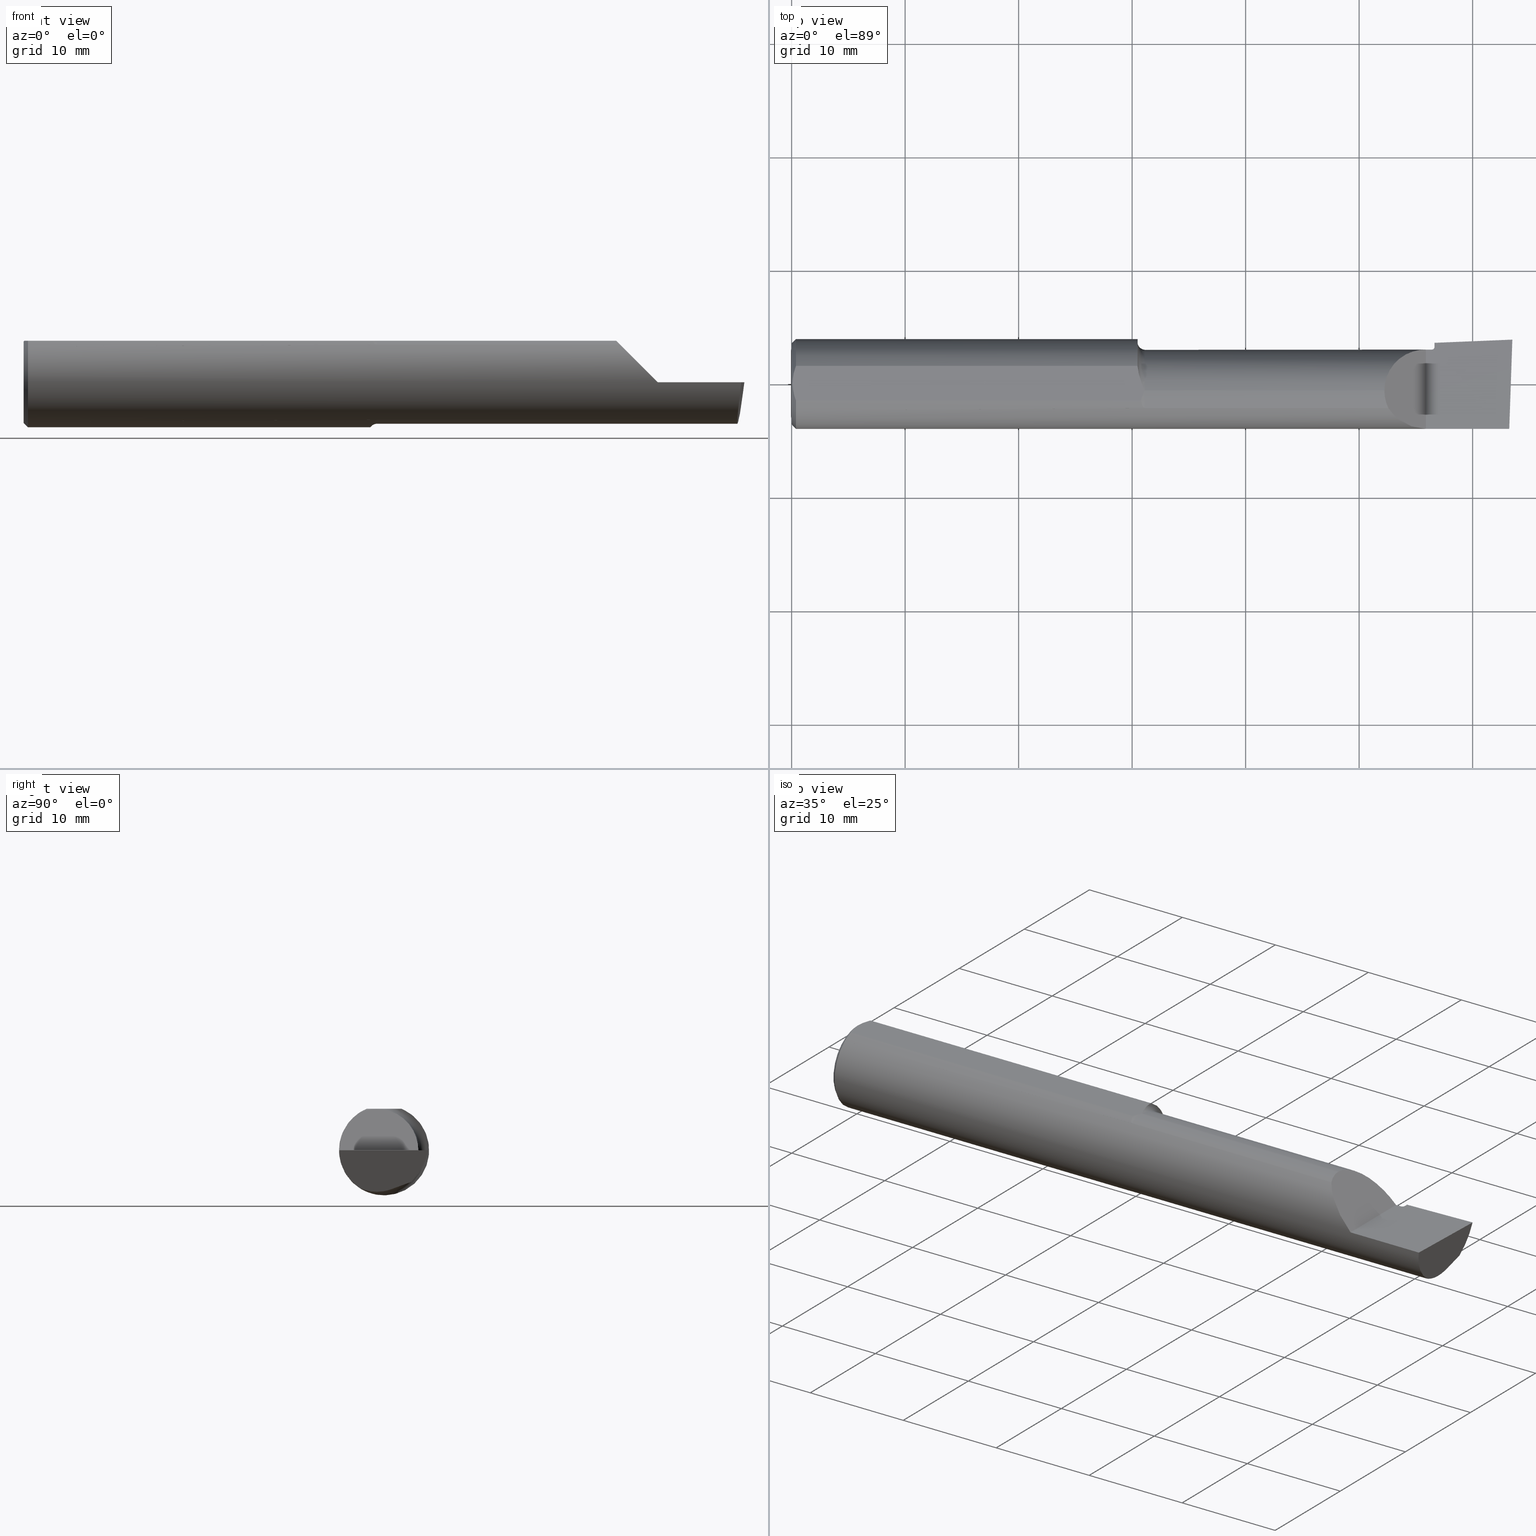
[diagram: canonical four-view strip — front | top / right | iso, engineering-drawing reading convention]
A machine part, canonical four-view strip (front | top / right | iso — engineering-drawing reading convention). The complete STEP part file that produces these views, byte-faithful:
ISO-10303-21;
HEADER;
FILE_DESCRIPTION (( 'STEP AP203' ),
    '1' );
FILE_NAME ('210294-BB3112.STEP',
    '2024-04-17T23:06:12',
    ( '' ),
    ( '' ),
    'SwSTEP 2.0',
    'SolidWorks 2022',
    '' );
FILE_SCHEMA (( 'CONFIG_CONTROL_DESIGN' ));
ENDSEC;

DATA;
#1 = CARTESIAN_POINT ( 'NONE',  ( 2.499553225608604823, 0.1407279727905360600, 3.826894855694925850E-18 ) ) ;
#2 = PERSON_AND_ORGANIZATION ( #692, #396 ) ;
#3 = VERTEX_POINT ( 'NONE', #421 ) ;
#4 = CARTESIAN_POINT ( 'NONE',  ( 2.146287522244402446, -0.1560999999999999888, 0.05371247775559774562 ) ) ;
#5 = CARTESIAN_POINT ( 'NONE',  ( 1.225000000000000089, -0.08569999999999958207, 0.1304711462354801732 ) ) ;
#6 = APPLICATION_PROTOCOL_DEFINITION ( 'international standard', 'config_control_design', 1994, #377 ) ;
#7 = ORIENTED_EDGE ( 'NONE', *, *, #406, .T. ) ;
#8 = AXIS2_PLACEMENT_3D ( 'NONE', #590, #434, #702 ) ;
#9 = CIRCLE ( 'NONE', #172, 0.1439000000000000001 ) ;
#10 = PLANE ( 'NONE',  #47 ) ;
#11 = DIRECTION ( 'NONE',  ( -1.000000000000000000, -0.000000000000000000, -0.000000000000000000 ) ) ;
#12 = ORIENTED_EDGE ( 'NONE', *, *, #254, .F. ) ;
#13 = EDGE_CURVE ( 'NONE', #58, #287, #629, .T. ) ;
#14 = CARTESIAN_POINT ( 'NONE',  ( 2.069528853764521781, -0.08570000000000160822, 0.1304711462354791740 ) ) ;
#15 = CARTESIAN_POINT ( 'NONE',  ( 2.232146125398431824, 0.1426568087456045186, 3.826894855694925850E-18 ) ) ;
#16 = ORIENTED_EDGE ( 'NONE', *, *, #193, .T. ) ;
#17 = DIRECTION ( 'NONE',  ( -1.000000000000000000, -0.000000000000000000, -0.000000000000000000 ) ) ;
#18 = CARTESIAN_POINT ( 'NONE',  ( 0.01499999999999972536, -0.06001999666777736026, 0.1440999999999999504 ) ) ;
#19 = VERTEX_POINT ( 'NONE', #198 ) ;
#20 = AXIS2_PLACEMENT_3D ( 'NONE', #491, #709, #214 ) ;
#21 = LINE ( 'NONE', #418, #461 ) ;
#22 = AXIS2_PLACEMENT_3D ( 'NONE', #25, #34, #599 ) ;
#23 = CARTESIAN_POINT ( 'NONE',  ( 1.221036826405246689, -0.03107590170041915276, 0.1441000000000000059 ) ) ;
#24 = CARTESIAN_POINT ( 'NONE',  ( 1.200071990262526755, 0.05564801034740574776, -0.1460745134073546669 ) ) ;
#25 = CARTESIAN_POINT ( 'NONE',  ( 0.000000000000000000, -0.02500000000000000486, 0.000000000000000000 ) ) ;
#26 = CARTESIAN_POINT ( 'NONE',  ( 1.212837095251398045, -0.05422015848554267992, 0.1440999999999999781 ) ) ;
#27 = CARTESIAN_POINT ( 'NONE',  ( 0.002999999999999654852, 1.764715027525136477E-17, 0.1440999999999999504 ) ) ;
#28 = EDGE_CURVE ( 'NONE', #38, #49, #503, .T. ) ;
#29 = PRODUCT_RELATED_PRODUCT_CATEGORY ( 'detail', '', ( #354 ) ) ;
#30 = CARTESIAN_POINT ( 'NONE',  ( 1.207963511987595773, -0.04781653154421319080, -0.1490354188631307919 ) ) ;
#31 = DIRECTION ( 'NONE',  ( 1.000000000000000000, -0.000000000000000000, -0.000000000000000000 ) ) ;
#32 = ORIENTED_EDGE ( 'NONE', *, *, #346, .T. ) ;
#33 = ADVANCED_FACE ( 'NONE', ( #648 ), #124, .T. ) ;
#34 = DIRECTION ( 'NONE',  ( -1.000000000000000000, -0.000000000000000000, -0.000000000000000000 ) ) ;
#35 = AXIS2_PLACEMENT_3D ( 'NONE', #279, #392, #667 ) ;
#36 = LOCAL_TIME ( 16, 6, 12.00000000000000000, #509 ) ;
#37 = PLANE ( 'NONE',  #321 ) ;
#38 = VERTEX_POINT ( 'NONE', #593 ) ;
#39 = CARTESIAN_POINT ( 'NONE',  ( 2.229821002046091571, 0.07620616581628353314, -0.1136908642440134232 ) ) ;
#40 = ADVANCED_FACE ( 'NONE', ( #91 ), #202, .T. ) ;
#41 = DIRECTION ( 'NONE',  ( 0.000000000000000000, 0.3420201433256629397, -0.9396926207859105373 ) ) ;
#42 = ORIENTED_EDGE ( 'NONE', *, *, #199, .F. ) ;
#43 = ORIENTED_EDGE ( 'NONE', *, *, #627, .F. ) ;
#44 = MECHANICAL_CONTEXT ( 'NONE', #377, 'mechanical' ) ;
#45 = CIRCLE ( 'NONE', #20, 0.1560999999999999888 ) ;
#46 = B_SPLINE_CURVE_WITH_KNOTS ( 'NONE', 3,
 ( #140, #236, #292, #671, #361, #132, #180, #409, #128, #5 ),
 .UNSPECIFIED., .F., .F.,
 ( 4, 2, 2, 2, 4 ),
 ( 5.292347910093785045E-07, 0.0004247077115782297413, 0.0006367969499718419872, 0.0007428415691686514983, 0.0008488861883654609010 ),
 .UNSPECIFIED. ) ;
#47 = AXIS2_PLACEMENT_3D ( 'NONE', #306, #581, #511 ) ;
#48 = CARTESIAN_POINT ( 'NONE',  ( 1.221844053232376215, -0.02500000000003146580, 0.1440999999999999504 ) ) ;
#49 = VERTEX_POINT ( 'NONE', #312 ) ;
#50 = PERSON_AND_ORGANIZATION ( #692, #396 ) ;
#51 = CARTESIAN_POINT ( 'NONE',  ( 2.229814999632693251, 0.07017856946061198919, -0.1184930152355831018 ) ) ;
#52 = EDGE_LOOP ( 'NONE', ( #42, #118, #553, #194 ) ) ;
#53 = CARTESIAN_POINT ( 'NONE',  ( 2.229999999999999538, 0.1560999999999999888, 3.826894855694925850E-18 ) ) ;
#54 = ORIENTED_EDGE ( 'NONE', *, *, #28, .F. ) ;
#55 = CARTESIAN_POINT ( 'NONE',  ( 2.219999999999999751, 0.02421669862456293787, -0.1352217681310926567 ) ) ;
#56 = AXIS2_PLACEMENT_3D ( 'NONE', #427, #31, #540 ) ;
#57 = CIRCLE ( 'NONE', #256, 0.1560999999999999888 ) ;
#58 = VERTEX_POINT ( 'NONE', #153 ) ;
#59 = CC_DESIGN_SECURITY_CLASSIFICATION ( #726, ( #231 ) ) ;
#60 = ADVANCED_FACE ( 'NONE', ( #207 ), #37, .T. ) ;
#61 = CYLINDRICAL_SURFACE ( 'NONE', #528, 0.1439000000000000556 ) ;
#62 = APPROVAL_DATE_TIME ( #171, #221 ) ;
#63 = ORIENTED_EDGE ( 'NONE', *, *, #346, .F. ) ;
#64 = CARTESIAN_POINT ( 'NONE',  ( 2.484581445595339666, 0.09576735185317598875, -0.1091794601135748777 ) ) ;
#65 = CARTESIAN_POINT ( 'NONE',  ( 2.236438376473965040, 0.1428326560817834989, 3.826894855694925850E-18 ) ) ;
#66 = EDGE_CURVE ( 'NONE', #282, #284, #473, .T. ) ;
#67 = VERTEX_POINT ( 'NONE', #696 ) ;
#68 = CARTESIAN_POINT ( 'NONE',  ( 2.476130359589496788, -0.02499999999999999098, -0.1439000000000000556 ) ) ;
#69 = DIRECTION ( 'NONE',  ( 0.000000000000000000, 0.000000000000000000, 1.000000000000000000 ) ) ;
#70 = APPROVAL_DATE_TIME ( #111, #646 ) ;
#71 = ORIENTED_EDGE ( 'NONE', *, *, #560, .F. ) ;
#72 = APPROVAL_PERSON_ORGANIZATION ( #107, #646, #294 ) ;
#73 = CARTESIAN_POINT ( 'NONE',  ( 2.475676552398977215, -0.08569999999999944329, -0.1304711462354803120 ) ) ;
#74 = DIRECTION ( 'NONE',  ( 0.7071067811865483499, 8.659560562354922997E-17, 0.7071067811865466846 ) ) ;
#75 = EDGE_LOOP ( 'NONE', ( #136, #353, #120, #179, #598, #471, #359 ) ) ;
#76 = CARTESIAN_POINT ( 'NONE',  ( 2.229999999999999538, 0.1026580227690544328, -0.08595719412995697639 ) ) ;
#77 = DIRECTION ( 'NONE',  ( 1.000000000000000000, 6.829619984160658046E-18, 0.000000000000000000 ) ) ;
#78 = ORIENTED_EDGE ( 'NONE', *, *, #342, .T. ) ;
#79 = CARTESIAN_POINT ( 'NONE',  ( 2.500000000000000000, 0.1536194554637218546, 2.048885995248197414E-16 ) ) ;
#80 = DIRECTION ( 'NONE',  ( -1.000000000000000000, 0.000000000000000000, 0.000000000000000000 ) ) ;
#81 = CARTESIAN_POINT ( 'NONE',  ( 0.01133677082750125277, -0.05049267068356103755, 0.1440999999999999781 ) ) ;
#82 = AXIS2_PLACEMENT_3D ( 'NONE', #272, #380, #263 ) ;
#83 = B_SPLINE_CURVE_WITH_KNOTS ( 'NONE', 3,
 ( #456, #623, #404, #135 ),
 .UNSPECIFIED., .F., .F.,
 ( 4, 4 ),
 ( 0.002773882331925834992, 0.003069179409190571188 ),
 .UNSPECIFIED. ) ;
#84 = CARTESIAN_POINT ( 'NONE',  ( 1.211707069840786355, -0.06372296352516945706, -0.1426158673175147718 ) ) ;
#85 = AXIS2_PLACEMENT_3D ( 'NONE', #578, #77, #308 ) ;
#86 = CARTESIAN_POINT ( 'NONE',  ( 1.210843495424060334, -0.06001999666777306508, 0.1440999999999999504 ) ) ;
#87 = CC_DESIGN_DATE_AND_TIME_ASSIGNMENT ( #395, #607, ( #726 ) ) ;
#88 = CARTESIAN_POINT ( 'NONE',  ( 0.002999999999999648781, 0.01034624861404697359, 0.1440999999999999781 ) ) ;
#89 =( BOUNDED_CURVE ( )  B_SPLINE_CURVE ( 3, ( #663, #401, #234, #713 ),
 .UNSPECIFIED., .F., .F. ) 
 B_SPLINE_CURVE_WITH_KNOTS ( ( 4, 4 ),
 ( 5.847732816089013852, 6.283185307179586232 ),
 .UNSPECIFIED. ) 
 CURVE ( )  GEOMETRIC_REPRESENTATION_ITEM ( )  RATIONAL_B_SPLINE_CURVE ( ( 1.000000000000000000, 0.9842607512044733165, 0.9842607512044733165, 1.000000000000000000 ) ) 
 REPRESENTATION_ITEM ( '' )  );
#90 = CARTESIAN_POINT ( 'NONE',  ( 1.223482932671287493, -0.08569999999999979023, -0.1304711462354801177 ) ) ;
#91 = FACE_OUTER_BOUND ( 'NONE', #588, .T. ) ;
#92 = EDGE_CURVE ( 'NONE', #220, #633, #565, .T. ) ;
#93 =( NAMED_UNIT ( * ) SI_UNIT ( $, .STERADIAN. ) SOLID_ANGLE_UNIT ( ) );
#94 = B_SPLINE_CURVE_WITH_KNOTS ( 'NONE', 3,
 ( #413, #15, #288, #65, #462, #626, #564 ),
 .UNSPECIFIED., .F., .F.,
 ( 4, 3, 4 ),
 ( 0.009746653936076972100, 0.009910325884368138827, 0.01661039546317633411 ),
 .UNSPECIFIED. ) ;
#95 = CARTESIAN_POINT ( 'NONE',  ( 1.201388441185261557, 0.01585133794323622530, -0.1555099485709025842 ) ) ;
#96 = EDGE_CURVE ( 'NONE', #106, #661, #108, .T. ) ;
#97 = DIRECTION ( 'NONE',  ( 0.000000000000000000, 0.000000000000000000, 1.000000000000000000 ) ) ;
#98 = ADVANCED_FACE ( 'NONE', ( #489 ), #436, .F. ) ;
#99 =( BOUNDED_CURVE ( )  B_SPLINE_CURVE ( 3, ( #621, #131, #139, #350 ),
 .UNSPECIFIED., .F., .F. ) 
 B_SPLINE_CURVE_WITH_KNOTS ( ( 4, 4 ),
 ( 6.122674497807367722, 6.558126988897922338 ),
 .UNSPECIFIED. ) 
 CURVE ( )  GEOMETRIC_REPRESENTATION_ITEM ( )  RATIONAL_B_SPLINE_CURVE ( ( 1.000000000000000000, 0.9842607512044745377, 0.9842607512044745377, 1.000000000000000000 ) ) 
 REPRESENTATION_ITEM ( '' )  );
#100 = AXIS2_PLACEMENT_3D ( 'NONE', #684, #360, #407 ) ;
#101 = APPROVAL_PERSON_ORGANIZATION ( #2, #295, #216 ) ;
#102 = PLANE ( 'NONE',  #369 ) ;
#103 = ORIENTED_EDGE ( 'NONE', *, *, #219, .F. ) ;
#104 = FACE_OUTER_BOUND ( 'NONE', #177, .T. ) ;
#105 = CARTESIAN_POINT ( 'NONE',  ( 2.500000000000000000, 0.1536194554637218546, 2.048885995248197414E-16 ) ) ;
#106 = VERTEX_POINT ( 'NONE', #439 ) ;
#107 = PERSON_AND_ORGANIZATION ( #692, #396 ) ;
#108 = B_SPLINE_CURVE_WITH_KNOTS ( 'NONE', 3,
 ( #432, #212, #587, #596 ),
 .UNSPECIFIED., .F., .F.,
 ( 4, 4 ),
 ( 0.0005609392357388779532, 0.007068866004999270133 ),
 .UNSPECIFIED. ) ;
#109 = CARTESIAN_POINT ( 'NONE',  ( 1.220724021719191255, -0.01776615298046146582, 0.1440999999999999781 ) ) ;
#110 = ORIENTED_EDGE ( 'NONE', *, *, #352, .F. ) ;
#111 = DATE_AND_TIME ( #242, #36 ) ;
#112 = EDGE_CURVE ( 'NONE', #188, #493, #699, .T. ) ;
#113 = CIRCLE ( 'NONE', #209, 0.1411000000000003085 ) ;
#114 = DIRECTION ( 'NONE',  ( 0.000000000000000000, 0.000000000000000000, 1.000000000000000000 ) ) ;
#115 = ORIENTED_EDGE ( 'NONE', *, *, #166, .T. ) ;
#116 = PERSON_AND_ORGANIZATION ( #692, #396 ) ;
#117 = LINE ( 'NONE', #286, #460 ) ;
#118 = ORIENTED_EDGE ( 'NONE', *, *, #488, .F. ) ;
#119 = FACE_OUTER_BOUND ( 'NONE', #679, .T. ) ;
#120 = ORIENTED_EDGE ( 'NONE', *, *, #382, .F. ) ;
#121 = ADVANCED_FACE ( 'NONE', ( #485 ), #102, .T. ) ;
#122 = EDGE_CURVE ( 'NONE', #633, #67, #45, .T. ) ;
#123 = DIRECTION ( 'NONE',  ( 0.000000000000000000, 0.000000000000000000, 1.000000000000000000 ) ) ;
#124 = CONICAL_SURFACE ( 'NONE', #56, 0.1560999999999999888, 0.7853981633974471688 ) ;
#125 = EDGE_LOOP ( 'NONE', ( #16, #270, #244 ) ) ;
#126 = CARTESIAN_POINT ( 'NONE',  ( 2.489315288308734608, 0.1256128547571744025, -0.07906752438118797022 ) ) ;
#127 = EDGE_CURVE ( 'NONE', #49, #403, #339, .T. ) ;
#128 = CARTESIAN_POINT ( 'NONE',  ( 1.223558490372086860, -0.08570000000287507358, 0.1304711462335917393 ) ) ;
#129 = DIRECTION ( 'NONE',  ( 1.000000000000000000, 0.000000000000000000, 0.000000000000000000 ) ) ;
#130 = ORIENTED_EDGE ( 'NONE', *, *, #627, .T. ) ;
#131 = CARTESIAN_POINT ( 'NONE',  ( 2.475247014433751946, -0.06661082633900415606, -0.1393521354400290846 ) ) ;
#132 = CARTESIAN_POINT ( 'NONE',  ( 1.219508261956889550, -0.08224208440130496844, 0.1326837206089795385 ) ) ;
#133 = ORIENTED_EDGE ( 'NONE', *, *, #435, .F. ) ;
#134 = DIRECTION ( 'NONE',  ( 0.000000000000000000, 0.000000000000000000, 1.000000000000000000 ) ) ;
#135 = CARTESIAN_POINT ( 'NONE',  ( 1.200050504025077514, 0.06001999666777729781, 0.1440999999999999504 ) ) ;
#136 = ORIENTED_EDGE ( 'NONE', *, *, #505, .F. ) ;
#137 = CIRCLE ( 'NONE', #552, 0.1560999999999999888 ) ;
#138 = LOCAL_TIME ( 16, 6, 12.00000000000000000, #330 ) ;
#139 = CARTESIAN_POINT ( 'NONE',  ( 2.475400702430881950, -0.04605394310600625929, -0.1439000000000000834 ) ) ;
#140 = CARTESIAN_POINT ( 'NONE',  ( 1.210843495424060334, -0.06001999666777306508, 0.1440999999999999504 ) ) ;
#141 = CARTESIAN_POINT ( 'NONE',  ( 0.000000000000000000, 0.000000000000000000, 0.000000000000000000 ) ) ;
#142 = EDGE_CURVE ( 'NONE', #388, #282, #258, .T. ) ;
#143 = CARTESIAN_POINT ( 'NONE',  ( 2.229999999999999538, -0.02500000000000000486, 0.000000000000000000 ) ) ;
#144 = CARTESIAN_POINT ( 'NONE',  ( 2.500000000000000000, 0.06001999666777736719, 0.1440999999999999504 ) ) ;
#145 = CARTESIAN_POINT ( 'NONE',  ( 0.01131807689752593361, 0.05044405151276061539, 0.1440999999999999781 ) ) ;
#146 = ADVANCED_FACE ( 'NONE', ( #325 ), #232, .F. ) ;
#147 = CARTESIAN_POINT ( 'NONE',  ( 1.225000000000000089, -0.08569999999999974860, -0.1304711462354800899 ) ) ;
#148 = CARTESIAN_POINT ( 'NONE',  ( 2.229999999999999538, 0.1425688816766004785, 0.000000000000000000 ) ) ;
#149 = CARTESIAN_POINT ( 'NONE',  ( 2.056000000000000050, 0.1560999999999999888, 0.1440000000000007108 ) ) ;
#150 = CONICAL_SURFACE ( 'NONE', #35, 0.1560999999999999888, 0.7853981633974471688 ) ;
#151 = CARTESIAN_POINT ( 'NONE',  ( 2.056000000000000050, -0.1560999999999999888, 3.826894855694925850E-18 ) ) ;
#152 = CARTESIAN_POINT ( 'NONE',  ( 1.199999999999999956, 0.1439000000000000001, 0.000000000000000000 ) ) ;
#153 = CARTESIAN_POINT ( 'NONE',  ( 0.000000000000000000, 1.819825143532968629E-17, 0.1411000000000003085 ) ) ;
#154 = CARTESIAN_POINT ( 'NONE',  ( 1.200649978979528187, 0.03207608857981686379, -0.1529893249888212847 ) ) ;
#155 = ORIENTED_EDGE ( 'NONE', *, *, #475, .F. ) ;
#156 = LINE ( 'NONE', #151, #644 ) ;
#157 = VECTOR ( 'NONE', #479, 39.37007874015748143 ) ;
#158 = TOROIDAL_SURFACE ( 'NONE', #384, 0.1688999999999999946, 0.02500000000000000486 ) ;
#159 = CARTESIAN_POINT ( 'NONE',  ( 0.000000000000000000, 0.000000000000000000, 0.000000000000000000 ) ) ;
#160 = ORIENTED_EDGE ( 'NONE', *, *, #526, .F. ) ;
#161 = PERSON_AND_ORGANIZATION ( #692, #396 ) ;
#162 = CARTESIAN_POINT ( 'NONE',  ( 1.204082834115638212, 0.03088512097718107766, 0.1440999999999999504 ) ) ;
#163 = ORIENTED_EDGE ( 'NONE', *, *, #549, .T. ) ;
#164 = PERSON_AND_ORGANIZATION_ROLE ( 'creator' ) ;
#165 = B_SPLINE_CURVE_WITH_KNOTS ( 'NONE', 3,
 ( #147, #90, #642, #259, #430, #535, #543, #386, #84, #30, #589, #530 ),
 .UNSPECIFIED., .F., .F.,
 ( 4, 2, 2, 2, 2, 4 ),
 ( 1.966861314596262729E-07, 0.0001139043861859081211, 0.0002276120862403566006, 0.0004550274863492592518, 0.0009098582865670681863, 0.001819519887002688007 ),
 .UNSPECIFIED. ) ;
#166 = EDGE_CURVE ( 'NONE', #19, #446, #117, .T. ) ;
#167 = CC_DESIGN_PERSON_AND_ORGANIZATION_ASSIGNMENT ( #116, #566, ( #354 ) ) ;
#168 =( BOUNDED_CURVE ( )  B_SPLINE_CURVE ( 3, ( #555, #398, #175, #612 ),
 .UNSPECIFIED., .F., .T. ) 
 B_SPLINE_CURVE_WITH_KNOTS ( ( 4, 4 ),
 ( 0.2749416817183363282, 0.6240075321171965061 ),
 .UNSPECIFIED. ) 
 CURVE ( )  GEOMETRIC_REPRESENTATION_ITEM ( )  RATIONAL_B_SPLINE_CURVE ( ( 1.000000000000000000, 0.9898718353414723836, 0.9898718353414723836, 1.000000000000000000 ) ) 
 REPRESENTATION_ITEM ( '' )  );
#169 = CARTESIAN_POINT ( 'NONE',  ( 1.225000000000000089, -0.02500000000000000486, 0.000000000000000000 ) ) ;
#170 = VERTEX_POINT ( 'NONE', #442 ) ;
#171 = DATE_AND_TIME ( #187, #230 ) ;
#172 = AXIS2_PLACEMENT_3D ( 'NONE', #365, #466, #477 ) ;
#173 = LINE ( 'NONE', #451, #357 ) ;
#174 = VERTEX_POINT ( 'NONE', #500 ) ;
#175 = CARTESIAN_POINT ( 'NONE',  ( 2.477647009804057276, 0.008402520951239019972, -0.1409776580835795379 ) ) ;
#176 = EDGE_CURVE ( 'NONE', #388, #3, #328, .T. ) ;
#177 = EDGE_LOOP ( 'NONE', ( #455, #668, #12, #78 ) ) ;
#178 = CARTESIAN_POINT ( 'NONE',  ( 1.225000000000000089, -0.02500000000000000486, 0.1688999999999999946 ) ) ;
#179 = ORIENTED_EDGE ( 'NONE', *, *, #324, .T. ) ;
#180 = CARTESIAN_POINT ( 'NONE',  ( 1.220308733175471838, -0.08325729668116155224, 0.1320471792325035865 ) ) ;
#181 = AXIS2_PLACEMENT_3D ( 'NONE', #141, #362, #579 ) ;
#182 = COORDINATED_UNIVERSAL_TIME_OFFSET ( 8, 0, .BEHIND. ) ;
#183 = CIRCLE ( 'NONE', #554, 0.2026556797788580666 ) ;
#184 = ORIENTED_EDGE ( 'NONE', *, *, #480, .F. ) ;
#185 = DIRECTION ( 'NONE',  ( -1.000000000000000000, -0.000000000000000000, -0.000000000000000000 ) ) ;
#186 = CARTESIAN_POINT ( 'NONE',  ( 2.229999999999999538, 0.1289000000000001256, 0.000000000000000000 ) ) ;
#187 = CALENDAR_DATE ( 2024, 17, 4 ) ;
#188 = VERTEX_POINT ( 'NONE', #283 ) ;
#189 = CARTESIAN_POINT ( 'NONE',  ( 2.069528853764521781, -0.08570000000000160822, 0.1304711462354791740 ) ) ;
#190 = ORIENTED_EDGE ( 'NONE', *, *, #28, .T. ) ;
#191 = CARTESIAN_POINT ( 'NONE',  ( 0.01499999999999970281, 0.000000000000000000, 0.000000000000000000 ) ) ;
#192 = DIRECTION ( 'NONE',  ( 0.000000000000000000, 0.000000000000000000, -1.000000000000000000 ) ) ;
#193 = EDGE_CURVE ( 'NONE', #284, #437, #602, .T. ) ;
#194 = ORIENTED_EDGE ( 'NONE', *, *, #653, .F. ) ;
#195 = CC_DESIGN_APPROVAL ( #295, ( #726 ) ) ;
#196 = CARTESIAN_POINT ( 'NONE',  ( 2.500000000000000000, -0.06001999666777736719, 0.1440999999999999504 ) ) ;
#197 = DIRECTION ( 'NONE',  ( -1.000000000000000000, 0.000000000000000000, -0.000000000000000000 ) ) ;
#198 = CARTESIAN_POINT ( 'NONE',  ( 2.475676552398977215, -0.08569999999999944329, -0.1304711462354803120 ) ) ;
#199 = EDGE_CURVE ( 'NONE', #620, #188, #89, .T. ) ;
#200 = DIRECTION ( 'NONE',  ( -1.000000000000000000, -0.000000000000000000, -0.000000000000000000 ) ) ;
#201 = FACE_OUTER_BOUND ( 'NONE', #125, .T. ) ;
#202 = PLANE ( 'NONE',  #688 ) ;
#203 = ORIENTED_EDGE ( 'NONE', *, *, #127, .T. ) ;
#204 = CYLINDRICAL_SURFACE ( 'NONE', #22, 0.1439000000000000556 ) ;
#205 = APPLICATION_CONTEXT ( 'configuration controlled 3d designs of mechanical parts and assemblies' ) ;
#206 = DIRECTION ( 'NONE',  ( -1.000000000000000000, -0.000000000000000000, -0.000000000000000000 ) ) ;
#207 = FACE_OUTER_BOUND ( 'NONE', #52, .T. ) ;
#208 = DIRECTION ( 'NONE',  ( 0.07437990725530781166, 0.9370896517296887218, 0.3410727400684822053 ) ) ;
#209 = AXIS2_PLACEMENT_3D ( 'NONE', #364, #568, #297 ) ;
#210 = CARTESIAN_POINT ( 'NONE',  ( 2.500000000000000000, 0.02421669862456291358, -0.1352217681310924902 ) ) ;
#211 = CARTESIAN_POINT ( 'NONE',  ( 2.229859268224278601, 0.08199278120420903926, -0.1085136927497340198 ) ) ;
#212 = CARTESIAN_POINT ( 'NONE',  ( 2.314562659517444221, 0.08023483548404049259, -0.1148328337351926520 ) ) ;
#213 = CARTESIAN_POINT ( 'NONE',  ( 2.229999999999999538, 0.1026580227690544328, -0.08595719412995697639 ) ) ;
#214 = DIRECTION ( 'NONE',  ( 0.000000000000000000, 0.000000000000000000, -1.000000000000000000 ) ) ;
#215 = ORIENTED_EDGE ( 'NONE', *, *, #704, .T. ) ;
#216 = APPROVAL_ROLE ( '' ) ;
#217 = CIRCLE ( 'NONE', #724, 0.1539000000000001200 ) ;
#218 = CARTESIAN_POINT ( 'NONE',  ( 2.224174734775642204, 0.03941084190547497479, -0.1296915522416648148 ) ) ;
#219 = EDGE_CURVE ( 'NONE', #106, #170, #683, .T. ) ;
#220 = VERTEX_POINT ( 'NONE', #447 ) ;
#221 = APPROVAL ( #327, 'UNSPECIFIED' ) ;
#222 = CALENDAR_DATE ( 2024, 17, 4 ) ;
#223 = DIRECTION ( 'NONE',  ( 0.000000000000000000, 0.000000000000000000, -1.000000000000000000 ) ) ;
#224 = VERTEX_POINT ( 'NONE', #105 ) ;
#225 = DIRECTION ( 'NONE',  ( 0.000000000000000000, 0.000000000000000000, 1.000000000000000000 ) ) ;
#226 = EDGE_CURVE ( 'NONE', #287, #441, #173, .T. ) ;
#227 = DIRECTION ( 'NONE',  ( 0.000000000000000000, 1.000000000000000000, 0.000000000000000000 ) ) ;
#228 = EDGE_LOOP ( 'NONE', ( #498, #559, #557 ) ) ;
#229 = EDGE_CURVE ( 'NONE', #628, #334, #399, .T. ) ;
#230 = LOCAL_TIME ( 16, 6, 12.00000000000000000, #299 ) ;
#231 = PRODUCT_DEFINITION_FORMATION_WITH_SPECIFIED_SOURCE ( 'ANY', '', #354, .NOT_KNOWN. ) ;
#232 = PLANE ( 'NONE',  #381 ) ;
#233 = ORIENTED_EDGE ( 'NONE', *, *, #122, .F. ) ;
#234 = CARTESIAN_POINT ( 'NONE',  ( 2.056100000000000705, -0.04605394310600714747, 0.1439000000000000834 ) ) ;
#235 = EDGE_LOOP ( 'NONE', ( #130, #615, #576, #654, #63, #160 ) ) ;
#236 = CARTESIAN_POINT ( 'NONE',  ( 1.212083001804619586, -0.06507129184707169389, 0.1419960532975073353 ) ) ;
#237 = APPROVAL_STATUS ( 'not_yet_approved' ) ;
#238 = EDGE_LOOP ( 'NONE', ( #591, #309, #184, #507, #340, #665, #372, #400 ) ) ;
#239 = DIRECTION ( 'NONE',  ( -1.000000000000000000, -0.000000000000000000, -0.000000000000000000 ) ) ;
#240 = CARTESIAN_POINT ( 'NONE',  ( 1.225000000000000089, -0.02500000000000000486, 0.000000000000000000 ) ) ;
#241 = AXIS2_PLACEMENT_3D ( 'NONE', #169, #561, #123 ) ;
#242 = CALENDAR_DATE ( 2024, 17, 4 ) ;
#243 = VECTOR ( 'NONE', #508, 39.37007874015748143 ) ;
#244 = ORIENTED_EDGE ( 'NONE', *, *, #497, .F. ) ;
#245 = ADVANCED_FACE ( 'NONE', ( #119 ), #150, .T. ) ;
#246 = DIRECTION ( 'NONE',  ( 1.000000000000000000, -0.000000000000000000, -0.000000000000000000 ) ) ;
#247 = DIRECTION ( 'NONE',  ( 0.000000000000000000, 0.000000000000000000, 1.000000000000000000 ) ) ;
#248 = ORIENTED_EDGE ( 'NONE', *, *, #342, .F. ) ;
#249 = CARTESIAN_POINT ( 'NONE',  ( 1.225000000000000089, -0.02500000000000000486, 0.000000000000000000 ) ) ;
#250 = ORIENTED_EDGE ( 'NONE', *, *, #649, .T. ) ;
#251 = CARTESIAN_POINT ( 'NONE',  ( 2.229999999999999094, 0.09791314462616589054, -0.09193769788322241066 ) ) ;
#252 = EDGE_CURVE ( 'NONE', #403, #441, #137, .T. ) ;
#253 = CARTESIAN_POINT ( 'NONE',  ( 1.210843495424060334, -0.06001999666777306508, 0.1440999999999999504 ) ) ;
#254 = EDGE_CURVE ( 'NONE', #174, #493, #449, .T. ) ;
#255 = ORIENTED_EDGE ( 'NONE', *, *, #66, .F. ) ;
#256 = AXIS2_PLACEMENT_3D ( 'NONE', #191, #246, #525 ) ;
#257 = CARTESIAN_POINT ( 'NONE',  ( 2.500000000000000000, 0.02421669862456291358, -0.1352217681310924902 ) ) ;
#258 = LINE ( 'NONE', #483, #157 ) ;
#259 = CARTESIAN_POINT ( 'NONE',  ( 1.220128093538963121, -0.08306175160949978709, -0.1321708551218363503 ) ) ;
#260 = LINE ( 'NONE', #144, #278 ) ;
#261 = CARTESIAN_POINT ( 'NONE',  ( 0.002999999999999647914, -0.01031315224690933403, 0.1440999999999999781 ) ) ;
#262 = CARTESIAN_POINT ( 'NONE',  ( 2.229999999999999538, -0.05609999999999996934, 0.04000000000000000083 ) ) ;
#263 = DIRECTION ( 'NONE',  ( -1.000000000000000000, 0.000000000000000000, 0.000000000000000000 ) ) ;
#264 = ORIENTED_EDGE ( 'NONE', *, *, #229, .F. ) ;
#265 = VECTOR ( 'NONE', #645, 39.37007874015748143 ) ;
#266 = DIRECTION ( 'NONE',  ( 0.000000000000000000, 0.000000000000000000, 1.000000000000000000 ) ) ;
#268 = VECTOR ( 'NONE', #630, 39.37007874015748143 ) ;
#267 = CC_DESIGN_PERSON_AND_ORGANIZATION_ASSIGNMENT ( #495, #619, ( #726 ) ) ;
#269 = CARTESIAN_POINT ( 'NONE',  ( 1.199999999999999956, 0.07070000000000016549, -0.1391715488165593539 ) ) ;
#270 = ORIENTED_EDGE ( 'NONE', *, *, #674, .T. ) ;
#271 = CARTESIAN_POINT ( 'NONE',  ( 2.199999999999999289, 0.1189000000000000612, 3.826894855694925850E-18 ) ) ;
#272 = CARTESIAN_POINT ( 'NONE',  ( 0.000000000000000000, 0.06250000000000000000, 0.1440999999999999504 ) ) ;
#273 = ADVANCED_BREP_SHAPE_REPRESENTATION ( '210294-BB3112', ( #341, #541 ), #300 ) ;
#274 = EDGE_CURVE ( 'NONE', #613, #517, #168, .T. ) ;
#275 = CARTESIAN_POINT ( 'NONE',  ( 2.225157097429442121, 0.04322541840385487472, -0.1283031599399231115 ) ) ;
#276 = ORIENTED_EDGE ( 'NONE', *, *, #302, .F. ) ;
#277 = PERSON_AND_ORGANIZATION ( #692, #396 ) ;
#278 = VECTOR ( 'NONE', #695, 39.37007874015748143 ) ;
#279 = CARTESIAN_POINT ( 'NONE',  ( 0.01499999999999970281, 0.000000000000000000, 0.000000000000000000 ) ) ;
#280 = EDGE_CURVE ( 'NONE', #603, #446, #711, .T. ) ;
#281 = ORIENTED_EDGE ( 'NONE', *, *, #382, .T. ) ;
#282 = VERTEX_POINT ( 'NONE', #344 ) ;
#283 = CARTESIAN_POINT ( 'NONE',  ( 2.056100000000000705, -0.02500000000000000486, 0.1439000000000000556 ) ) ;
#284 = VERTEX_POINT ( 'NONE', #186 ) ;
#285 = AXIS2_PLACEMENT_3D ( 'NONE', #240, #572, #69 ) ;
#286 = CARTESIAN_POINT ( 'NONE',  ( 1.722499999999999698, -0.08569999999999944329, -0.1304711462354803120 ) ) ;
#287 = VERTEX_POINT ( 'NONE', #617 ) ;
#288 = CARTESIAN_POINT ( 'NONE',  ( 2.234292250889879039, 0.1427447335443261800, 3.826894855694925850E-18 ) ) ;
#289 = PERSON_AND_ORGANIZATION_ROLE ( 'creator' ) ;
#290 = ORIENTED_EDGE ( 'NONE', *, *, #92, .F. ) ;
#291 = FACE_OUTER_BOUND ( 'NONE', #562, .T. ) ;
#292 = CARTESIAN_POINT ( 'NONE',  ( 1.213486186723762739, -0.06993940022577692373, 0.1396536156489261715 ) ) ;
#293 = ADVANCED_FACE ( 'NONE', ( #523 ), #61, .T. ) ;
#294 = APPROVAL_ROLE ( '' ) ;
#295 = APPROVAL ( #237, 'UNSPECIFIED' ) ;
#296 = EDGE_LOOP ( 'NONE', ( #264, #524, #190, #203, #673, #155 ) ) ;
#297 = DIRECTION ( 'NONE',  ( 0.000000000000000000, 0.000000000000000000, -1.000000000000000000 ) ) ;
#298 = DIRECTION ( 'NONE',  ( -1.000000000000000000, -0.000000000000000000, -0.000000000000000000 ) ) ;
#299 = COORDINATED_UNIVERSAL_TIME_OFFSET ( 8, 0, .BEHIND. ) ;
#300 =( GEOMETRIC_REPRESENTATION_CONTEXT ( 3 ) GLOBAL_UNCERTAINTY_ASSIGNED_CONTEXT ( ( #638 ) ) GLOBAL_UNIT_ASSIGNED_CONTEXT ( ( #700, #438, #93 ) ) REPRESENTATION_CONTEXT ( 'NONE', 'WORKASPACE' ) );
#301 = VERTEX_POINT ( 'NONE', #681 ) ;
#302 = EDGE_CURVE ( 'NONE', #334, #493, #420, .T. ) ;
#303 = CARTESIAN_POINT ( 'NONE',  ( 2.199999999999999289, 0.1189000000000000612, 3.826894855694925850E-18 ) ) ;
#304 = ORIENTED_EDGE ( 'NONE', *, *, #497, .T. ) ;
#305 = EDGE_CURVE ( 'NONE', #437, #224, #94, .T. ) ;
#306 = CARTESIAN_POINT ( 'NONE',  ( 2.056000000000000050, 0.1560999999999999888, 3.826894855694925850E-18 ) ) ;
#307 = EDGE_CURVE ( 'NONE', #58, #49, #351, .T. ) ;
#308 = DIRECTION ( 'NONE',  ( 0.000000000000000000, 1.000000000000000000, 0.000000000000000000 ) ) ;
#309 = ORIENTED_EDGE ( 'NONE', *, *, #610, .T. ) ;
#310 =( BOUNDED_CURVE ( )  B_SPLINE_CURVE ( 3, ( #319, #592, #433, #271 ),
 .UNSPECIFIED., .F., .F. ) 
 B_SPLINE_CURVE_WITH_KNOTS ( ( 4, 4 ),
 ( 0.000000000000000000, 1.570796326794898112 ),
 .UNSPECIFIED. ) 
 CURVE ( )  GEOMETRIC_REPRESENTATION_ITEM ( )  RATIONAL_B_SPLINE_CURVE ( ( 1.000000000000000000, 0.8047378541243646044, 0.8047378541243646044, 1.000000000000000000 ) ) 
 REPRESENTATION_ITEM ( '' )  );
#311 = CARTESIAN_POINT ( 'NONE',  ( 2.229999999999999538, 0.1891209999999999836, 0.000000000000000000 ) ) ;
#312 = CARTESIAN_POINT ( 'NONE',  ( 0.002999999999999654852, 1.764715027525136477E-17, 0.1440999999999999504 ) ) ;
#313 = VECTOR ( 'NONE', #74, 39.37007874015748143 ) ;
#314 = CYLINDRICAL_SURFACE ( 'NONE', #651, 0.1560999999999999888 ) ;
#315 = DIRECTION ( 'NONE',  ( 0.1219414168599299575, 0.000000000000000000, 0.9925372994775525370 ) ) ;
#316 = CARTESIAN_POINT ( 'NONE',  ( 1.203902027940762620, -0.01695323297373857799, -0.1553906460178914595 ) ) ;
#317 =( BOUNDED_CURVE ( )  B_SPLINE_CURVE ( 3, ( #634, #4, #411, #14 ),
 .UNSPECIFIED., .F., .T. ) 
 B_SPLINE_CURVE_WITH_KNOTS ( ( 4, 4 ),
 ( 4.712388980384689674, 5.702009535608121737 ),
 .UNSPECIFIED. ) 
 CURVE ( )  GEOMETRIC_REPRESENTATION_ITEM ( )  RATIONAL_B_SPLINE_CURVE ( ( 1.000000000000000000, 0.9200392120919993477, 0.9200392120919993477, 1.000000000000000000 ) ) 
 REPRESENTATION_ITEM ( '' )  );
#318 = CARTESIAN_POINT ( 'NONE',  ( 1.203136333117606815, -0.008834603825782230690, -0.1560646118524871839 ) ) ;
#319 = CARTESIAN_POINT ( 'NONE',  ( 2.056100000000000705, -0.02500000000000000486, 0.1439000000000000556 ) ) ;
#320 = DIRECTION ( 'NONE',  ( 0.7071067811865441310, 0.000000000000000000, -0.7071067811865507924 ) ) ;
#321 = AXIS2_PLACEMENT_3D ( 'NONE', #149, #705, #320 ) ;
#322 = DIRECTION ( 'NONE',  ( -1.000000000000000000, -0.000000000000000000, -0.000000000000000000 ) ) ;
#323 = CARTESIAN_POINT ( 'NONE',  ( 1.200397517577731721, 0.04003554869482266187, -0.1511013546051950540 ) ) ;
#324 = EDGE_CURVE ( 'NONE', #67, #628, #83, .T. ) ;
#325 = FACE_OUTER_BOUND ( 'NONE', #728, .T. ) ;
#326 = ORIENTED_EDGE ( 'NONE', *, *, #13, .F. ) ;
#327 = APPROVAL_STATUS ( 'not_yet_approved' ) ;
#328 = LINE ( 'NONE', #600, #440 ) ;
#329 = ORIENTED_EDGE ( 'NONE', *, *, #704, .F. ) ;
#330 = COORDINATED_UNIVERSAL_TIME_OFFSET ( 8, 0, .BEHIND. ) ;
#331 = CLOSED_SHELL ( 'NONE', ( #655, #708, #385, #622, #33, #429, #556, #580, #40, #660, #98, #60, #146, #245, #121, #374, #293, #402, #412 ) ) ;
#332 = AXIS2_PLACEMENT_3D ( 'NONE', #373, #322, #266 ) ;
#333 = DIRECTION ( 'NONE',  ( 0.000000000000000000, 0.000000000000000000, -1.000000000000000000 ) ) ;
#334 = VERTEX_POINT ( 'NONE', #512 ) ;
#335 = CARTESIAN_POINT ( 'NONE',  ( 0.000000000000000000, 0.000000000000000000, 0.000000000000000000 ) ) ;
#336 = DIRECTION ( 'NONE',  ( 0.7071067811865483499, 0.000000000000000000, -0.7071067811865466846 ) ) ;
#337 = ORIENTED_EDGE ( 'NONE', *, *, #534, .F. ) ;
#338 = DIRECTION ( 'NONE',  ( -1.000000000000000000, -0.000000000000000000, -0.000000000000000000 ) ) ;
#339 = B_SPLINE_CURVE_WITH_KNOTS ( 'NONE', 3,
 ( #27, #261, #652, #366, #81, #529 ),
 .UNSPECIFIED., .F., .F.,
 ( 4, 2, 4 ),
 ( 0.004180243930011207955, 0.004951811791491188969, 0.005723379652971170850 ),
 .UNSPECIFIED. ) ;
#340 = ORIENTED_EDGE ( 'NONE', *, *, #653, .T. ) ;
#341 = MANIFOLD_SOLID_BREP ( 'Front', #331 ) ;
#342 = EDGE_CURVE ( 'NONE', #174, #620, #686, .T. ) ;
#343 = TOROIDAL_SURFACE ( 'NONE', #285, 0.1688999999999999946, 0.02500000000000000486 ) ;
#344 = CARTESIAN_POINT ( 'NONE',  ( 2.219999999999999751, 0.1189000000000001306, 3.826894855694927391E-18 ) ) ;
#345 = EDGE_LOOP ( 'NONE', ( #276, #542, #721, #650 ) ) ;
#346 = EDGE_CURVE ( 'NONE', #301, #224, #470, .T. ) ;
#347 = PRODUCT_DEFINITION_SHAPE ( 'NONE', 'NONE',  #701 ) ;
#348 = FACE_OUTER_BOUND ( 'NONE', #345, .T. ) ;
#349 = ORIENTED_EDGE ( 'NONE', *, *, #96, .T. ) ;
#350 = CARTESIAN_POINT ( 'NONE',  ( 2.476130359589496788, -0.02499999999999999098, -0.1439000000000000556 ) ) ;
#351 = LINE ( 'NONE', #419, #313 ) ;
#352 = EDGE_CURVE ( 'NONE', #405, #174, #46, .T. ) ;
#353 = ORIENTED_EDGE ( 'NONE', *, *, #92, .T. ) ;
#354 = PRODUCT ( '210294-BB3112', '210294-BB3112', '', ( #44 ) ) ;
#355 = LINE ( 'NONE', #196, #268 ) ;
#356 = DIRECTION ( 'NONE',  ( 0.000000000000000000, 0.000000000000000000, 1.000000000000000000 ) ) ;
#357 = VECTOR ( 'NONE', #336, 39.37007874015748143 ) ;
#358 = CIRCLE ( 'NONE', #408, 0.1439000000000001389 ) ;
#359 = ORIENTED_EDGE ( 'NONE', *, *, #480, .T. ) ;
#360 = DIRECTION ( 'NONE',  ( -0.000000000000000000, 1.000000000000000000, 1.224646799147353207E-16 ) ) ;
#361 = CARTESIAN_POINT ( 'NONE',  ( 1.217376702052392012, -0.07908290169519989476, 0.1346075232099596397 ) ) ;
#362 = DIRECTION ( 'NONE',  ( -1.000000000000000000, -0.000000000000000000, -0.000000000000000000 ) ) ;
#363 = CC_DESIGN_DATE_AND_TIME_ASSIGNMENT ( #678, #659, ( #701 ) ) ;
#364 = CARTESIAN_POINT ( 'NONE',  ( 0.000000000000000000, 0.000000000000000000, 0.000000000000000000 ) ) ;
#365 = CARTESIAN_POINT ( 'NONE',  ( 1.225000000000000089, -0.02500000000000000486, 0.000000000000000000 ) ) ;
#366 = CARTESIAN_POINT ( 'NONE',  ( 0.008281010600930404503, -0.04057055625899311929, 0.1440999999999999226 ) ) ;
#367 = CARTESIAN_POINT ( 'NONE',  ( 2.500000000000000000, 0.000000000000000000, 0.000000000000000000 ) ) ;
#368 = CARTESIAN_POINT ( 'NONE',  ( 1.218148277183320749, -0.03981762987256245306, 0.1440999999999999504 ) ) ;
#369 = AXIS2_PLACEMENT_3D ( 'NONE', #152, #544, #536 ) ;
#370 = CARTESIAN_POINT ( 'NONE',  ( 1.204862523376302841, -0.02499999999999998057, -0.1540850739039962836 ) ) ;
#371 = AXIS2_PLACEMENT_3D ( 'NONE', #311, #197, #527 ) ;
#372 = ORIENTED_EDGE ( 'NONE', *, *, #435, .T. ) ;
#373 = CARTESIAN_POINT ( 'NONE',  ( 0.000000000000000000, -0.02500000000000000486, 0.000000000000000000 ) ) ;
#374 = ADVANCED_FACE ( 'NONE', ( #348 ), #343, .F. ) ;
#375 = CARTESIAN_POINT ( 'NONE',  ( 0.002999999999999654852, 1.764715027525136477E-17, 0.1440999999999999504 ) ) ;
#376 = DIRECTION ( 'NONE',  ( 1.000000000000000000, -0.000000000000000000, -0.000000000000000000 ) ) ;
#377 = APPLICATION_CONTEXT ( 'configuration controlled 3d designs of mechanical parts and assemblies' ) ;
#378 = CARTESIAN_POINT ( 'NONE',  ( 1.201879363605551587, 0.007536363012658810548, -0.1561326888578026817 ) ) ;
#379 = FACE_OUTER_BOUND ( 'NONE', #658, .T. ) ;
#380 = DIRECTION ( 'NONE',  ( -0.000000000000000000, 0.000000000000000000, -1.000000000000000000 ) ) ;
#381 = AXIS2_PLACEMENT_3D ( 'NONE', #159, #547, #333 ) ;
#382 = EDGE_CURVE ( 'NONE', #67, #633, #486, .T. ) ;
#383 = ORIENTED_EDGE ( 'NONE', *, *, #488, .T. ) ;
#384 = AXIS2_PLACEMENT_3D ( 'NONE', #521, #239, #422 ) ;
#385 = ADVANCED_FACE ( 'NONE', ( #467 ), #712, .F. ) ;
#386 = CARTESIAN_POINT ( 'NONE',  ( 1.213126895908767544, -0.06887538526310840736, -0.1401954838979875828 ) ) ;
#387 = CARTESIAN_POINT ( 'NONE',  ( 2.222129735053916200, 0.03180793362839346577, -0.1324587845483785886 ) ) ;
#388 = VERTEX_POINT ( 'NONE', #303 ) ;
#389 = CARTESIAN_POINT ( 'NONE',  ( 1.213353959584573483, 0.002866311517153515617, 0.1440999999999999504 ) ) ;
#390 = ORIENTED_EDGE ( 'NONE', *, *, #127, .F. ) ;
#391 = SHAPE_DEFINITION_REPRESENTATION ( #347, #273 ) ;
#392 = DIRECTION ( 'NONE',  ( 1.000000000000000000, -0.000000000000000000, -0.000000000000000000 ) ) ;
#393 =( BOUNDED_CURVE ( )  B_SPLINE_CURVE ( 3, ( #73, #577, #676, #680 ),
 .UNSPECIFIED., .F., .F. ) 
 B_SPLINE_CURVE_WITH_KNOTS ( ( 4, 4 ),
 ( 0.3062340898531133448, 1.295854645076560674 ),
 .UNSPECIFIED. ) 
 CURVE ( )  GEOMETRIC_REPRESENTATION_ITEM ( )  RATIONAL_B_SPLINE_CURVE ( ( 1.000000000000000000, 0.9200392120919970163, 0.9200392120919970163, 1.000000000000000000 ) ) 
 REPRESENTATION_ITEM ( '' )  );
#394 = ORIENTED_EDGE ( 'NONE', *, *, #649, .F. ) ;
#395 = DATE_AND_TIME ( #719, #504 ) ;
#396 = ORGANIZATION ( 'UNSPECIFIED', 'UNSPECIFIED', '' ) ;
#397 = CC_DESIGN_PERSON_AND_ORGANIZATION_ASSIGNMENT ( #277, #164, ( #231 ) ) ;
#398 = CARTESIAN_POINT ( 'NONE',  ( 2.476713598110543035, -0.008170903630063761774, -0.1439000000000000834 ) ) ;
#399 = B_SPLINE_CURVE_WITH_KNOTS ( 'NONE', 3,
 ( #558, #657, #162, #727, #389, #453, #506, #109, #609, #48 ),
 .UNSPECIFIED., .F., .F.,
 ( 4, 2, 2, 2, 4 ),
 ( 0.01301670781631352782, 0.01412932456335166086, 0.01468563293687072738, 0.01496378712363025804, 0.01524194131038979043 ),
 .UNSPECIFIED. ) ;
#400 = ORIENTED_EDGE ( 'NONE', *, *, #454, .F. ) ;
#401 = CARTESIAN_POINT ( 'NONE',  ( 2.060647864559971953, -0.06661082633900586303, 0.1393521354400287238 ) ) ;
#402 = ADVANCED_FACE ( 'NONE', ( #519 ), #690, .T. ) ;
#403 = VERTEX_POINT ( 'NONE', #18 ) ;
#404 = CARTESIAN_POINT ( 'NONE',  ( 1.200016018626790970, 0.06364538733738608900, 0.1425899657466628001 ) ) ;
#405 = VERTEX_POINT ( 'NONE', #253 ) ;
#406 = EDGE_CURVE ( 'NONE', #38, #628, #260, .T. ) ;
#407 = DIRECTION ( 'NONE',  ( 0.000000000000000000, -1.707404996040164265E-16, 1.000000000000000000 ) ) ;
#408 = AXIS2_PLACEMENT_3D ( 'NONE', #698, #206, #635 ) ;
#409 = CARTESIAN_POINT ( 'NONE',  ( 1.222282960142827779, -0.08496306084894000854, 0.1309561502377615816 ) ) ;
#410 = CARTESIAN_POINT ( 'NONE',  ( 0.008267319495954040393, 0.04051643528673654765, 0.1440999999999999781 ) ) ;
#411 = CARTESIAN_POINT ( 'NONE',  ( 2.099017382551547684, -0.1305938407426056047, 0.1009826174484526745 ) ) ;
#412 = ADVANCED_FACE ( 'NONE', ( #482 ), #691, .F. ) ;
#413 = CARTESIAN_POINT ( 'NONE',  ( 2.229999999999999538, 0.1425688816766004785, 0.000000000000000000 ) ) ;
#414 = EDGE_LOOP ( 'NONE', ( #570, #43, #115, #443 ) ) ;
#415 = FACE_OUTER_BOUND ( 'NONE', #75, .T. ) ;
#416 = DIRECTION ( 'NONE',  ( 0.000000000000000000, 0.000000000000000000, 1.000000000000000000 ) ) ;
#417 = ORIENTED_EDGE ( 'NONE', *, *, #522, .F. ) ;
#418 = CARTESIAN_POINT ( 'NONE',  ( 0.000000000000000000, -0.02499999999999999098, -0.1439000000000000556 ) ) ;
#419 = CARTESIAN_POINT ( 'NONE',  ( 0.01499999999999970281, 1.911673653469018068E-17, 0.1560999999999999888 ) ) ;
#420 = CIRCLE ( 'NONE', #595, 0.02500000000000000486 ) ;
#421 = CARTESIAN_POINT ( 'NONE',  ( 2.199999999999999289, -0.1560999999999999888, 3.826894855694925850E-18 ) ) ;
#422 = DIRECTION ( 'NONE',  ( 0.000000000000000000, 0.000000000000000000, 1.000000000000000000 ) ) ;
#423 = CARTESIAN_POINT ( 'NONE',  ( 1.221844053232374439, -0.02804753169359752371, 0.1440999999999999781 ) ) ;
#424 = CARTESIAN_POINT ( 'NONE',  ( 0.01499999999999970281, 0.06001999666777736719, 0.1440999999999999504 ) ) ;
#425 = DIRECTION ( 'NONE',  ( -1.000000000000000000, -0.000000000000000000, -0.000000000000000000 ) ) ;
#426 = PLANE ( 'NONE',  #371 ) ;
#427 = CARTESIAN_POINT ( 'NONE',  ( 0.01499999999999970281, 0.000000000000000000, 0.000000000000000000 ) ) ;
#428 = ORIENTED_EDGE ( 'NONE', *, *, #252, .F. ) ;
#429 = ADVANCED_FACE ( 'NONE', ( #201 ), #426, .T. ) ;
#430 = CARTESIAN_POINT ( 'NONE',  ( 1.219310887745669314, -0.08198244806375869220, -0.1328448627315467756 ) ) ;
#431 = LINE ( 'NONE', #257, #616 ) ;
#432 = CARTESIAN_POINT ( 'NONE',  ( 2.229814999632693251, 0.07017856946061198919, -0.1184930152355831018 ) ) ;
#433 = CARTESIAN_POINT ( 'NONE',  ( 2.115705331625488572, 0.1189000000000002139, 0.08429466837451156380 ) ) ;
#434 = DIRECTION ( 'NONE',  ( 0.000000000000000000, 0.000000000000000000, 1.000000000000000000 ) ) ;
#435 = EDGE_CURVE ( 'NONE', #282, #170, #358, .T. ) ;
#436 = PLANE ( 'NONE',  #82 ) ;
#437 = VERTEX_POINT ( 'NONE', #148 ) ;
#438 =( NAMED_UNIT ( * ) PLANE_ANGLE_UNIT ( ) SI_UNIT ( $, .RADIAN. ) );
#439 = CARTESIAN_POINT ( 'NONE',  ( 2.229814999632693251, 0.07017856946061198919, -0.1184930152355831018 ) ) ;
#440 = VECTOR ( 'NONE', #720, 39.37007874015748143 ) ;
#441 = VERTEX_POINT ( 'NONE', #532 ) ;
#442 = CARTESIAN_POINT ( 'NONE',  ( 2.219999999999999751, 0.02421669862456293787, -0.1352217681310926567 ) ) ;
#443 = ORIENTED_EDGE ( 'NONE', *, *, #280, .F. ) ;
#444 = APPROVAL_DATE_TIME ( #457, #295 ) ;
#445 = CARTESIAN_POINT ( 'NONE',  ( 1.225000000000000089, -0.02500000000000000486, 0.000000000000000000 ) ) ;
#446 = VERTEX_POINT ( 'NONE', #474 ) ;
#447 = CARTESIAN_POINT ( 'NONE',  ( 1.204862523376302841, -0.02499999999999998057, -0.1540850739039962836 ) ) ;
#448 = ORIENTED_EDGE ( 'NONE', *, *, #714, .F. ) ;
#449 = CIRCLE ( 'NONE', #538, 0.1439000000000000001 ) ;
#450 = CC_DESIGN_APPROVAL ( #646, ( #701 ) ) ;
#451 = CARTESIAN_POINT ( 'NONE',  ( 0.01499999999999970281, 0.000000000000000000, -0.1560999999999999888 ) ) ;
#452 = ORIENTED_EDGE ( 'NONE', *, *, #96, .F. ) ;
#453 = CARTESIAN_POINT ( 'NONE',  ( 1.217139718007822058, -0.007416860360647821448, 0.1440999999999999226 ) ) ;
#454 = EDGE_CURVE ( 'NONE', #517, #170, #431, .T. ) ;
#455 = ORIENTED_EDGE ( 'NONE', *, *, #199, .T. ) ;
#456 = CARTESIAN_POINT ( 'NONE',  ( 1.199999999999999956, 0.07070000000000016549, 0.1391715488165593539 ) ) ;
#457 = DATE_AND_TIME ( #222, #597 ) ;
#458 = EDGE_LOOP ( 'NONE', ( #304, #250, #573, #133, #670 ) ) ;
#459 = CARTESIAN_POINT ( 'NONE',  ( 2.478902233428061930, 0.02421669862456291358, -0.1352217681310924902 ) ) ;
#460 = VECTOR ( 'NONE', #492, 39.37007874015748143 ) ;
#461 = VECTOR ( 'NONE', #574, 39.37007874015748143 ) ;
#462 = CARTESIAN_POINT ( 'NONE',  ( 2.324292103802905629, 0.1464318502245317566, 3.826894855694925850E-18 ) ) ;
#463 = PERSON_AND_ORGANIZATION_ROLE ( 'design_supplier' ) ;
#464 = EDGE_LOOP ( 'NONE', ( #687, #281 ) ) ;
#465 =( BOUNDED_CURVE ( )  B_SPLINE_CURVE ( 3, ( #64, #126, #514, #79 ),
 .UNSPECIFIED., .F., .F. ) 
 B_SPLINE_CURVE_WITH_KNOTS ( ( 4, 4 ),
 ( 4.206370596475368373, 4.793754225472294905 ),
 .UNSPECIFIED. ) 
 CURVE ( )  GEOMETRIC_REPRESENTATION_ITEM ( )  RATIONAL_B_SPLINE_CURVE ( ( 1.000000000000000000, 0.9714544434386379601, 0.9714544434386379601, 1.000000000000000000 ) ) 
 REPRESENTATION_ITEM ( '' )  );
#466 = DIRECTION ( 'NONE',  ( -1.000000000000000000, -0.000000000000000000, -0.000000000000000000 ) ) ;
#467 = FACE_OUTER_BOUND ( 'NONE', #228, .T. ) ;
#468 = ORIENTED_EDGE ( 'NONE', *, *, #305, .T. ) ;
#469 = DIRECTION ( 'NONE',  ( 0.000000000000000000, 0.000000000000000000, 1.000000000000000000 ) ) ;
#470 = LINE ( 'NONE', #1, #243 ) ;
#471 = ORIENTED_EDGE ( 'NONE', *, *, #302, .T. ) ;
#472 = FACE_OUTER_BOUND ( 'NONE', #458, .T. ) ;
#473 = CIRCLE ( 'NONE', #8, 0.01000000000000016674 ) ;
#474 = CARTESIAN_POINT ( 'NONE',  ( 1.225000000000000089, -0.08569999999999974860, -0.1304711462354800899 ) ) ;
#475 = EDGE_CURVE ( 'NONE', #334, #405, #546, .T. ) ;
#476 = ORIENTED_EDGE ( 'NONE', *, *, #226, .F. ) ;
#477 = DIRECTION ( 'NONE',  ( 0.000000000000000000, 0.000000000000000000, 1.000000000000000000 ) ) ;
#478 = DIRECTION ( 'NONE',  ( -0.9919506264397697226, 0.03437759245049914342, 0.1218693392246628371 ) ) ;
#479 = DIRECTION ( 'NONE',  ( 1.000000000000000000, 0.000000000000000000, 0.000000000000000000 ) ) ;
#480 = EDGE_CURVE ( 'NONE', #493, #603, #9, .T. ) ;
#481 = LINE ( 'NONE', #637, #606 ) ;
#482 = FACE_OUTER_BOUND ( 'NONE', #235, .T. ) ;
#483 = CARTESIAN_POINT ( 'NONE',  ( 0.000000000000000000, 0.1189000000000000612, 3.826894855694925850E-18 ) ) ;
#484 =( LENGTH_UNIT ( ) NAMED_UNIT ( * ) SI_UNIT ( $, .METRE. ) );
#485 = FACE_OUTER_BOUND ( 'NONE', #464, .T. ) ;
#486 = CIRCLE ( 'NONE', #515, 0.1688999999999999946 ) ;
#487 = CARTESIAN_POINT ( 'NONE',  ( 2.229949136912695362, 0.09283247079591191997, -0.09764634118213799674 ) ) ;
#488 = EDGE_CURVE ( 'NONE', #3, #620, #317, .T. ) ;
#489 = FACE_OUTER_BOUND ( 'NONE', #296, .T. ) ;
#490 = ORIENTED_EDGE ( 'NONE', *, *, #526, .T. ) ;
#491 = CARTESIAN_POINT ( 'NONE',  ( 1.199999999999999956, 0.000000000000000000, 0.000000000000000000 ) ) ;
#492 = DIRECTION ( 'NONE',  ( -1.000000000000000000, -0.000000000000000000, -0.000000000000000000 ) ) ;
#493 = VERTEX_POINT ( 'NONE', #694 ) ;
#494 = CIRCLE ( 'NONE', #100, 0.02500000000000000486 ) ;
#495 = PERSON_AND_ORGANIZATION ( #692, #396 ) ;
#496 = CARTESIAN_POINT ( 'NONE',  ( 0.01499999999999970281, 0.000000000000000000, 0.000000000000000000 ) ) ;
#497 = EDGE_CURVE ( 'NONE', #284, #710, #217, .T. ) ;
#498 = ORIENTED_EDGE ( 'NONE', *, *, #714, .T. ) ;
#499 = SECURITY_CLASSIFICATION_LEVEL ( 'unclassified' ) ;
#500 = CARTESIAN_POINT ( 'NONE',  ( 1.225000000000000089, -0.08569999999999958207, 0.1304711462354801732 ) ) ;
#501 = ORIENTED_EDGE ( 'NONE', *, *, #176, .T. ) ;
#502 = ORIENTED_EDGE ( 'NONE', *, *, #674, .F. ) ;
#503 = B_SPLINE_CURVE_WITH_KNOTS ( 'NONE', 3,
 ( #424, #145, #410, #640, #88, #375 ),
 .UNSPECIFIED., .F., .F.,
 ( 4, 2, 4 ),
 ( 0.002632156065823466548, 0.003406199997917337685, 0.004180243930011207955 ),
 .UNSPECIFIED. ) ;
#504 = LOCAL_TIME ( 16, 6, 12.00000000000000000, #716 ) ;
#505 = EDGE_CURVE ( 'NONE', #220, #603, #494, .T. ) ;
#506 = CARTESIAN_POINT ( 'NONE',  ( 1.218418672230970667, -0.01083899323586594299, 0.1440999999999999504 ) ) ;
#507 = ORIENTED_EDGE ( 'NONE', *, *, #112, .F. ) ;
#508 = DIRECTION ( 'NONE',  ( 0.03463576215158579996, 0.9994000019912840926, 0.000000000000000000 ) ) ;
#509 = COORDINATED_UNIVERSAL_TIME_OFFSET ( 8, 0, .BEHIND. ) ;
#510 = EDGE_LOOP ( 'NONE', ( #71, #452, #394, #502, #468 ) ) ;
#511 = DIRECTION ( 'NONE',  ( -1.000000000000000000, 0.000000000000000000, 0.000000000000000000 ) ) ;
#512 = CARTESIAN_POINT ( 'NONE',  ( 1.221844053232376215, -0.02500000000003146580, 0.1440999999999999504 ) ) ;
#513 = ORIENTED_EDGE ( 'NONE', *, *, #226, .T. ) ;
#514 = CARTESIAN_POINT ( 'NONE',  ( 2.494605827839288192, 0.1454635380981003090, -0.04160498188424514160 ) ) ;
#515 = AXIS2_PLACEMENT_3D ( 'NONE', #516, #11, #247 ) ;
#516 = CARTESIAN_POINT ( 'NONE',  ( 1.199999999999999956, -0.02500000000000000486, 0.000000000000000000 ) ) ;
#517 = VERTEX_POINT ( 'NONE', #459 ) ;
#518 = CARTESIAN_POINT ( 'NONE',  ( 1.199999999999999956, 0.07070000000000016549, -0.1391715488165593539 ) ) ;
#519 = FACE_OUTER_BOUND ( 'NONE', #510, .T. ) ;
#520 = ORIENTED_EDGE ( 'NONE', *, *, #534, .T. ) ;
#521 = CARTESIAN_POINT ( 'NONE',  ( 1.225000000000000089, -0.02500000000000000486, 0.000000000000000000 ) ) ;
#522 = EDGE_CURVE ( 'NONE', #441, #38, #57, .T. ) ;
#523 = FACE_OUTER_BOUND ( 'NONE', #414, .T. ) ;
#524 = ORIENTED_EDGE ( 'NONE', *, *, #406, .F. ) ;
#525 = DIRECTION ( 'NONE',  ( 0.000000000000000000, 0.000000000000000000, -1.000000000000000000 ) ) ;
#526 = EDGE_CURVE ( 'NONE', #19, #301, #393, .T. ) ;
#527 = DIRECTION ( 'NONE',  ( -0.000000000000000000, 0.000000000000000000, 1.000000000000000000 ) ) ;
#528 = AXIS2_PLACEMENT_3D ( 'NONE', #677, #298, #356 ) ;
#529 = CARTESIAN_POINT ( 'NONE',  ( 0.01499999999999972536, -0.06001999666777736026, 0.1440999999999999504 ) ) ;
#530 = CARTESIAN_POINT ( 'NONE',  ( 1.204862523376302841, -0.02499999999999998057, -0.1540850739039962836 ) ) ;
#531 = DESIGN_CONTEXT ( 'detailed design', #205, 'design' ) ;
#532 = CARTESIAN_POINT ( 'NONE',  ( 0.01499999999999970281, 0.000000000000000000, -0.1560999999999999888 ) ) ;
#533 = CARTESIAN_POINT ( 'NONE',  ( 0.000000000000000000, -0.02500000000000000486, 0.1439000000000000556 ) ) ;
#534 = EDGE_CURVE ( 'NONE', #287, #58, #113, .T. ) ;
#535 = CARTESIAN_POINT ( 'NONE',  ( 1.217151728812736033, -0.07866717671367141895, -0.1348531152278716616 ) ) ;
#536 = DIRECTION ( 'NONE',  ( 0.000000000000000000, 0.000000000000000000, -1.000000000000000000 ) ) ;
#537 = DIRECTION ( 'NONE',  ( 0.000000000000000000, 0.000000000000000000, 1.000000000000000000 ) ) ;
#538 = AXIS2_PLACEMENT_3D ( 'NONE', #445, #338, #114 ) ;
#539 = APPROVAL_PERSON_ORGANIZATION ( #50, #221, #548 ) ;
#540 = DIRECTION ( 'NONE',  ( 0.000000000000000000, 0.000000000000000000, -1.000000000000000000 ) ) ;
#541 = AXIS2_PLACEMENT_3D ( 'NONE', #335, #225, #129 ) ;
#542 = ORIENTED_EDGE ( 'NONE', *, *, #475, .T. ) ;
#543 = CARTESIAN_POINT ( 'NONE',  ( 1.216062054560796302, -0.07627963852229883990, -0.1362221433799973291 ) ) ;
#544 = DIRECTION ( 'NONE',  ( 1.000000000000000000, 0.000000000000000000, 0.000000000000000000 ) ) ;
#545 = ORIENTED_EDGE ( 'NONE', *, *, #522, .T. ) ;
#546 = B_SPLINE_CURVE_WITH_KNOTS ( 'NONE', 3,
 ( #643, #423, #23, #639, #368, #585, #26, #86 ),
 .UNSPECIFIED., .F., .F.,
 ( 4, 2, 2, 4 ),
 ( 0.0006785821176393243368, 0.0009116715494801296569, 0.001144760981320934977, 0.001610939845002545617 ),
 .UNSPECIFIED. ) ;
#547 = DIRECTION ( 'NONE',  ( 1.000000000000000000, 0.000000000000000000, 0.000000000000000000 ) ) ;
#548 = APPROVAL_ROLE ( '' ) ;
#549 = EDGE_CURVE ( 'NONE', #405, #403, #355, .T. ) ;
#550 = CC_DESIGN_PERSON_AND_ORGANIZATION_ASSIGNMENT ( #672, #463, ( #231 ) ) ;
#551 = CARTESIAN_POINT ( 'NONE',  ( 2.227833546180563395, 0.05470044517252418970, -0.1241265917587197065 ) ) ;
#552 = AXIS2_PLACEMENT_3D ( 'NONE', #496, #717, #223 ) ;
#553 = ORIENTED_EDGE ( 'NONE', *, *, #176, .F. ) ;
#554 = AXIS2_PLACEMENT_3D ( 'NONE', #262, #425, #537 ) ;
#555 = CARTESIAN_POINT ( 'NONE',  ( 2.476130359589496788, -0.02499999999999999098, -0.1439000000000000556 ) ) ;
#556 = ADVANCED_FACE ( 'NONE', ( #472 ), #563, .F. ) ;
#557 = ORIENTED_EDGE ( 'NONE', *, *, #280, .T. ) ;
#558 = CARTESIAN_POINT ( 'NONE',  ( 1.200050504025077514, 0.06001999666777729781, 0.1440999999999999504 ) ) ;
#559 = ORIENTED_EDGE ( 'NONE', *, *, #505, .T. ) ;
#560 = EDGE_CURVE ( 'NONE', #661, #224, #465, .T. ) ;
#561 = DIRECTION ( 'NONE',  ( -1.000000000000000000, -0.000000000000000000, -0.000000000000000000 ) ) ;
#562 = EDGE_LOOP ( 'NONE', ( #215, #32, #715, #605, #255, #641, #501 ) ) ;
#563 = TOROIDAL_SURFACE ( 'NONE', #666, 0.1539000000000001200, 0.01000000000000008174 ) ;
#564 = CARTESIAN_POINT ( 'NONE',  ( 2.500000000000000000, 0.1536194554637218546, 2.048885995248197414E-16 ) ) ;
#565 = B_SPLINE_CURVE_WITH_KNOTS ( 'NONE', 3,
 ( #370, #316, #318, #378, #95, #154, #323, #24, #583, #269 ),
 .UNSPECIFIED., .F., .F.,
 ( 4, 2, 2, 2, 4 ),
 ( 0.001819519887002688007, 0.002458246943215885039, 0.003096973999429081855, 0.003735701055642279104, 0.004374428111855475920 ),
 .UNSPECIFIED. ) ;
#566 = PERSON_AND_ORGANIZATION_ROLE ( 'design_owner' ) ;
#567 = ORIENTED_EDGE ( 'NONE', *, *, #307, .F. ) ;
#568 = DIRECTION ( 'NONE',  ( -1.000000000000000000, -0.000000000000000000, -0.000000000000000000 ) ) ;
#569 = DIRECTION ( 'NONE',  ( 0.000000000000000000, -1.000000000000000000, 0.000000000000000000 ) ) ;
#570 = ORIENTED_EDGE ( 'NONE', *, *, #610, .F. ) ;
#571 = CARTESIAN_POINT ( 'NONE',  ( 1.200050504025077514, 0.06001999666777729781, 0.1440999999999999504 ) ) ;
#572 = DIRECTION ( 'NONE',  ( -1.000000000000000000, -0.000000000000000000, -0.000000000000000000 ) ) ;
#573 = ORIENTED_EDGE ( 'NONE', *, *, #219, .T. ) ;
#574 = DIRECTION ( 'NONE',  ( -1.000000000000000000, -0.000000000000000000, -0.000000000000000000 ) ) ;
#575 = AXIS2_PLACEMENT_3D ( 'NONE', #582, #478, #315 ) ;
#576 = ORIENTED_EDGE ( 'NONE', *, *, #685, .T. ) ;
#577 = CARTESIAN_POINT ( 'NONE',  ( 2.477743596163800799, -0.1305938407426047998, -0.1009826174484541872 ) ) ;
#578 = CARTESIAN_POINT ( 'NONE',  ( 2.200000000000000178, -0.05609999999999996934, 0.04000000000000000083 ) ) ;
#579 = DIRECTION ( 'NONE',  ( 0.000000000000000000, 0.000000000000000000, -1.000000000000000000 ) ) ;
#580 = ADVANCED_FACE ( 'NONE', ( #291 ), #10, .F. ) ;
#581 = DIRECTION ( 'NONE',  ( -0.000000000000000000, 0.000000000000000000, -1.000000000000000000 ) ) ;
#582 = CARTESIAN_POINT ( 'NONE',  ( 2.444043095161126278, 0.1555735136390714868, -0.4560102071422535985 ) ) ;
#583 = CARTESIAN_POINT ( 'NONE',  ( 1.200000000000000400, 0.06336441380915111554, -0.1428980715728493667 ) ) ;
#584 = CYLINDRICAL_SURFACE ( 'NONE', #332, 0.1439000000000000556 ) ;
#585 = CARTESIAN_POINT ( 'NONE',  ( 1.214985600317322056, -0.04846509284843827925, 0.1440999999999999781 ) ) ;
#586 = VECTOR ( 'NONE', #632, 39.37007874015748143 ) ;
#587 = CARTESIAN_POINT ( 'NONE',  ( 2.399536200982449685, 0.08831477339945956184, -0.1118919768392612618 ) ) ;
#588 = EDGE_LOOP ( 'NONE', ( #682, #624, #103, #349 ) ) ;
#589 = CARTESIAN_POINT ( 'NONE',  ( 1.206230440715337693, -0.03646003586389204992, -0.1522257056385417084 ) ) ;
#590 = CARTESIAN_POINT ( 'NONE',  ( 2.219999999999999751, 0.1289000000000001256, 0.000000000000000000 ) ) ;
#591 = ORIENTED_EDGE ( 'NONE', *, *, #274, .F. ) ;
#592 = CARTESIAN_POINT ( 'NONE',  ( 2.056100000000000705, 0.05929466837451177752, 0.1439000000000001112 ) ) ;
#593 = CARTESIAN_POINT ( 'NONE',  ( 0.01499999999999970281, 0.06001999666777736719, 0.1440999999999999504 ) ) ;
#594 = CARTESIAN_POINT ( 'NONE',  ( 2.484581445595339666, 0.09576735185317598875, -0.1091794601135748777 ) ) ;
#595 = AXIS2_PLACEMENT_3D ( 'NONE', #178, #569, #192 ) ;
#596 = CARTESIAN_POINT ( 'NONE',  ( 2.484581445595339666, 0.09576735185317598875, -0.1091794601135748777 ) ) ;
#597 = LOCAL_TIME ( 16, 6, 12.00000000000000000, #182 ) ;
#598 = ORIENTED_EDGE ( 'NONE', *, *, #229, .T. ) ;
#599 = DIRECTION ( 'NONE',  ( 0.000000000000000000, 0.000000000000000000, 1.000000000000000000 ) ) ;
#600 = CARTESIAN_POINT ( 'NONE',  ( 2.199999999999999289, -0.1560999999999999888, 3.826894855694925850E-18 ) ) ;
#601 = APPLICATION_PROTOCOL_DEFINITION ( 'international standard', 'config_control_design', 1994, #205 ) ;
#602 = LINE ( 'NONE', #53, #664 ) ;
#603 = VERTEX_POINT ( 'NONE', #689 ) ;
#604 = CARTESIAN_POINT ( 'NONE',  ( 2.229294457104739724, 0.06238674940841201083, -0.1213290058053423520 ) ) ;
#605 = ORIENTED_EDGE ( 'NONE', *, *, #193, .F. ) ;
#606 = VECTOR ( 'NONE', #208, 39.37007874015748143 ) ;
#607 = DATE_TIME_ROLE ( 'classification_date' ) ;
#608 = DIMENSIONAL_EXPONENTS ( 1.000000000000000000, 0.000000000000000000, 0.000000000000000000, 0.000000000000000000, 0.000000000000000000, 0.000000000000000000, 0.000000000000000000 ) ;
#609 = CARTESIAN_POINT ( 'NONE',  ( 1.221844053232384875, -0.02136326841098774507, 0.1440999999999998948 ) ) ;
#610 = EDGE_CURVE ( 'NONE', #613, #603, #21, .T. ) ;
#611 = ORIENTED_EDGE ( 'NONE', *, *, #166, .F. ) ;
#612 = CARTESIAN_POINT ( 'NONE',  ( 2.478902233428061930, 0.02421669862456291358, -0.1352217681310924902 ) ) ;
#613 = VERTEX_POINT ( 'NONE', #68 ) ;
#614 = CARTESIAN_POINT ( 'NONE',  ( 1.722499999999999698, -0.08569999999999944329, 0.1304711462354803120 ) ) ;
#615 = ORIENTED_EDGE ( 'NONE', *, *, #274, .T. ) ;
#616 = VECTOR ( 'NONE', #80, 39.37007874015748143 ) ;
#617 = CARTESIAN_POINT ( 'NONE',  ( 0.000000000000000000, 0.000000000000000000, -0.1411000000000003085 ) ) ;
#618 = B_SPLINE_CURVE_WITH_KNOTS ( 'NONE', 3,
 ( #76, #251, #487, #211, #39, #707 ),
 .UNSPECIFIED., .F., .F.,
 ( 4, 2, 4 ),
 ( 0.001299426195341844056, 0.001888440673100858381, 0.002477455150859872706 ),
 .UNSPECIFIED. ) ;
#619 = PERSON_AND_ORGANIZATION_ROLE ( 'classification_officer' ) ;
#620 = VERTEX_POINT ( 'NONE', #189 ) ;
#621 = CARTESIAN_POINT ( 'NONE',  ( 2.475676552398977215, -0.08569999999999944329, -0.1304711462354803120 ) ) ;
#622 = ADVANCED_FACE ( 'NONE', ( #415 ), #158, .F. ) ;
#623 = CARTESIAN_POINT ( 'NONE',  ( 1.199999999999999956, 0.06720526509779117807, 0.1409468955716051963 ) ) ;
#624 = ORIENTED_EDGE ( 'NONE', *, *, #454, .T. ) ;
#625 = CARTESIAN_POINT ( 'NONE',  ( 2.219999999999999751, -0.02500000000000000486, 0.000000000000000000 ) ) ;
#626 = CARTESIAN_POINT ( 'NONE',  ( 2.412145986017138366, 0.1500272651619396491, 3.826894855694925850E-18 ) ) ;
#627 = EDGE_CURVE ( 'NONE', #19, #613, #99, .T. ) ;
#628 = VERTEX_POINT ( 'NONE', #571 ) ;
#629 = CIRCLE ( 'NONE', #181, 0.1411000000000003085 ) ;
#630 = DIRECTION ( 'NONE',  ( -1.000000000000000000, -0.000000000000000000, -0.000000000000000000 ) ) ;
#631 = CC_DESIGN_APPROVAL ( #221, ( #231 ) ) ;
#632 = DIRECTION ( 'NONE',  ( 1.000000000000000000, 0.000000000000000000, 0.000000000000000000 ) ) ;
#633 = VERTEX_POINT ( 'NONE', #518 ) ;
#634 = CARTESIAN_POINT ( 'NONE',  ( 2.199999999999999289, -0.1560999999999999888, 3.826894855694925850E-18 ) ) ;
#635 = DIRECTION ( 'NONE',  ( 0.000000000000000000, 0.000000000000000000, 1.000000000000000000 ) ) ;
#636 = EDGE_LOOP ( 'NONE', ( #326, #725, #54, #417, #476 ) ) ;
#637 = CARTESIAN_POINT ( 'NONE',  ( 2.479018954091639859, 0.02568722648642991421, -0.1346865397607137915 ) ) ;
#638 = UNCERTAINTY_MEASURE_WITH_UNIT (LENGTH_MEASURE( 1.000000000000000082E-05 ), #700, 'distance_accuracy_value', 'NONE');
#639 = CARTESIAN_POINT ( 'NONE',  ( 1.219201185154609623, -0.03693468910894925905, 0.1440999999999999226 ) ) ;
#640 = CARTESIAN_POINT ( 'NONE',  ( 0.004122478534597582081, 0.02050740516666000463, 0.1440999999999999504 ) ) ;
#641 = ORIENTED_EDGE ( 'NONE', *, *, #142, .F. ) ;
#642 = CARTESIAN_POINT ( 'NONE',  ( 1.222162220462617688, -0.08489276752862412456, -0.1310023188550747675 ) ) ;
#643 = CARTESIAN_POINT ( 'NONE',  ( 1.221844053232376215, -0.02500000000003146580, 0.1440999999999999504 ) ) ;
#644 = VECTOR ( 'NONE', #376, 39.37007874015748143 ) ;
#645 = DIRECTION ( 'NONE',  ( -1.000000000000000000, -0.000000000000000000, -0.000000000000000000 ) ) ;
#646 = APPROVAL ( #662, 'UNSPECIFIED' ) ;
#647 = DIRECTION ( 'NONE',  ( 0.000000000000000000, 0.9396926207859105373, 0.3420201433256629397 ) ) ;
#648 = FACE_OUTER_BOUND ( 'NONE', #636, .T. ) ;
#649 = EDGE_CURVE ( 'NONE', #710, #106, #618, .T. ) ;
#650 = ORIENTED_EDGE ( 'NONE', *, *, #254, .T. ) ;
#651 = AXIS2_PLACEMENT_3D ( 'NONE', #367, #200, #97 ) ;
#652 = CARTESIAN_POINT ( 'NONE',  ( 0.004124548268480916768, -0.02052932358343030617, 0.1441000000000000059 ) ) ;
#653 = EDGE_CURVE ( 'NONE', #188, #388, #310, .T. ) ;
#654 = ORIENTED_EDGE ( 'NONE', *, *, #560, .T. ) ;
#655 = ADVANCED_FACE ( 'NONE', ( #697 ), #204, .T. ) ;
#656 = CALENDAR_DATE ( 2024, 17, 4 ) ;
#657 = CARTESIAN_POINT ( 'NONE',  ( 1.200532541532474351, 0.04511886254871746993, 0.1440999999999999781 ) ) ;
#658 = EDGE_LOOP ( 'NONE', ( #611, #490, #329, #383, #248, #110, #163, #718, #545, #7, #706, #233, #290, #448 ) ) ;
#659 = DATE_TIME_ROLE ( 'creation_date' ) ;
#660 = ADVANCED_FACE ( 'NONE', ( #379 ), #314, .T. ) ;
#661 = VERTEX_POINT ( 'NONE', #594 ) ;
#662 = APPROVAL_STATUS ( 'not_yet_approved' ) ;
#663 = CARTESIAN_POINT ( 'NONE',  ( 2.069528853764521781, -0.08570000000000160822, 0.1304711462354791740 ) ) ;
#664 = VECTOR ( 'NONE', #227, 39.37007874015748143 ) ;
#665 = ORIENTED_EDGE ( 'NONE', *, *, #142, .T. ) ;
#666 = AXIS2_PLACEMENT_3D ( 'NONE', #625, #17, #469 ) ;
#667 = DIRECTION ( 'NONE',  ( 0.000000000000000000, 0.000000000000000000, -1.000000000000000000 ) ) ;
#668 = ORIENTED_EDGE ( 'NONE', *, *, #112, .T. ) ;
#669 = DIRECTION ( 'NONE',  ( -1.000000000000000000, -0.000000000000000000, -0.000000000000000000 ) ) ;
#670 = ORIENTED_EDGE ( 'NONE', *, *, #66, .T. ) ;
#671 = CARTESIAN_POINT ( 'NONE',  ( 1.216324726609742779, -0.07684337455390519156, 0.1359013108991524443 ) ) ;
#672 = PERSON_AND_ORGANIZATION ( #692, #396 ) ;
#673 = ORIENTED_EDGE ( 'NONE', *, *, #549, .F. ) ;
#674 = EDGE_CURVE ( 'NONE', #437, #710, #183, .T. ) ;
#675 = AXIS2_PLACEMENT_3D ( 'NONE', #249, #669, #416 ) ;
#676 = CARTESIAN_POINT ( 'NONE',  ( 2.482667168175672678, -0.1560999999999999888, -0.05371247775559866849 ) ) ;
#677 = CARTESIAN_POINT ( 'NONE',  ( 0.000000000000000000, -0.02500000000000000486, 0.000000000000000000 ) ) ;
#678 = DATE_AND_TIME ( #656, #138 ) ;
#679 = EDGE_LOOP ( 'NONE', ( #567, #337, #513, #428, #390 ) ) ;
#680 = CARTESIAN_POINT ( 'NONE',  ( 2.489266190342419360, -0.1561000000000000165, 3.826894855694925850E-18 ) ) ;
#681 = CARTESIAN_POINT ( 'NONE',  ( 2.489266190342419360, -0.1561000000000000165, 3.826894855694925850E-18 ) ) ;
#682 = ORIENTED_EDGE ( 'NONE', *, *, #685, .F. ) ;
#683 = B_SPLINE_CURVE_WITH_KNOTS ( 'NONE', 3,
 ( #51, #604, #551, #275, #218, #387, #723, #55 ),
 .UNSPECIFIED., .F., .F.,
 ( 4, 2, 2, 4 ),
 ( 0.0009095538863544180407, 0.001557459001916092038, 0.001881411559696928928, 0.002205364117477765385 ),
 .UNSPECIFIED. ) ;
#684 = CARTESIAN_POINT ( 'NONE',  ( 1.225000000000000089, -0.02499999999999998404, -0.1688999999999999946 ) ) ;
#685 = EDGE_CURVE ( 'NONE', #517, #661, #481, .T. ) ;
#686 = LINE ( 'NONE', #614, #586 ) ;
#687 = ORIENTED_EDGE ( 'NONE', *, *, #122, .T. ) ;
#688 = AXIS2_PLACEMENT_3D ( 'NONE', #210, #41, #647 ) ;
#689 = CARTESIAN_POINT ( 'NONE',  ( 1.225000000000000089, -0.02499999999999999098, -0.1439000000000000001 ) ) ;
#690 = CONICAL_SURFACE ( 'NONE', #85, 0.2014507553098423553, 0.04014257279586985749 ) ;
#691 = PLANE ( 'NONE',  #575 ) ;
#692 = PERSON ( 'UNSPECIFIED', 'UNSPECIFIED', 'UNSPECIFIED', ('UNSPECIFIED'), ('UNSPECIFIED'), ('UNSPECIFIED') ) ;
#693 = ORIENTED_EDGE ( 'NONE', *, *, #13, .T. ) ;
#694 = CARTESIAN_POINT ( 'NONE',  ( 1.225000000000000089, -0.02500000000000000486, 0.1439000000000000001 ) ) ;
#695 = DIRECTION ( 'NONE',  ( 1.000000000000000000, 0.000000000000000000, 0.000000000000000000 ) ) ;
#696 = CARTESIAN_POINT ( 'NONE',  ( 1.199999999999999956, 0.07070000000000016549, 0.1391715488165593539 ) ) ;
#697 = FACE_OUTER_BOUND ( 'NONE', #238, .T. ) ;
#698 = CARTESIAN_POINT ( 'NONE',  ( 2.219999999999999751, -0.02500000000000000486, 0.000000000000000000 ) ) ;
#699 = LINE ( 'NONE', #533, #265 ) ;
#700 =( CONVERSION_BASED_UNIT ( 'INCH', #703 ) LENGTH_UNIT ( ) NAMED_UNIT ( #608 ) );
#701 = PRODUCT_DEFINITION ( 'UNKNOWN', '', #231, #531 ) ;
#702 = DIRECTION ( 'NONE',  ( -1.000000000000000000, 0.000000000000000000, 0.000000000000000000 ) ) ;
#703 = LENGTH_MEASURE_WITH_UNIT ( LENGTH_MEASURE( 0.02539999999999999897 ), #484 );
#704 = EDGE_CURVE ( 'NONE', #3, #301, #156, .T. ) ;
#705 = DIRECTION ( 'NONE',  ( 0.7071067811865509034, 0.000000000000000000, 0.7071067811865442421 ) ) ;
#706 = ORIENTED_EDGE ( 'NONE', *, *, #324, .F. ) ;
#707 = CARTESIAN_POINT ( 'NONE',  ( 2.229814999632693251, 0.07017856946061198919, -0.1184930152355831018 ) ) ;
#708 = ADVANCED_FACE ( 'NONE', ( #104 ), #584, .T. ) ;
#709 = DIRECTION ( 'NONE',  ( 1.000000000000000000, 0.000000000000000000, 0.000000000000000000 ) ) ;
#710 = VERTEX_POINT ( 'NONE', #213 ) ;
#711 = CIRCLE ( 'NONE', #241, 0.1439000000000000001 ) ;
#712 = TOROIDAL_SURFACE ( 'NONE', #675, 0.1688999999999999946, 0.02500000000000000486 ) ;
#713 = CARTESIAN_POINT ( 'NONE',  ( 2.056100000000000705, -0.02500000000000000486, 0.1439000000000000556 ) ) ;
#714 = EDGE_CURVE ( 'NONE', #446, #220, #165, .T. ) ;
#715 = ORIENTED_EDGE ( 'NONE', *, *, #305, .F. ) ;
#716 = COORDINATED_UNIVERSAL_TIME_OFFSET ( 8, 0, .BEHIND. ) ;
#717 = DIRECTION ( 'NONE',  ( 1.000000000000000000, -0.000000000000000000, -0.000000000000000000 ) ) ;
#718 = ORIENTED_EDGE ( 'NONE', *, *, #252, .T. ) ;
#719 = CALENDAR_DATE ( 2024, 17, 4 ) ;
#720 = DIRECTION ( 'NONE',  ( 0.000000000000000000, -1.000000000000000000, 0.000000000000000000 ) ) ;
#721 = ORIENTED_EDGE ( 'NONE', *, *, #352, .T. ) ;
#722 = CC_DESIGN_PERSON_AND_ORGANIZATION_ASSIGNMENT ( #161, #289, ( #701 ) ) ;
#723 = CARTESIAN_POINT ( 'NONE',  ( 2.221083675209255315, 0.02807969144452200638, -0.1338157537294434041 ) ) ;
#724 = AXIS2_PLACEMENT_3D ( 'NONE', #143, #185, #134 ) ;
#725 = ORIENTED_EDGE ( 'NONE', *, *, #307, .T. ) ;
#726 = SECURITY_CLASSIFICATION ( '', '', #499 ) ;
#727 = CARTESIAN_POINT ( 'NONE',  ( 1.210816084744949395, 0.009840729273020366180, 0.1440999999999999504 ) ) ;
#728 = EDGE_LOOP ( 'NONE', ( #520, #693 ) ) ;
ENDSEC;
END-ISO-10303-21;
